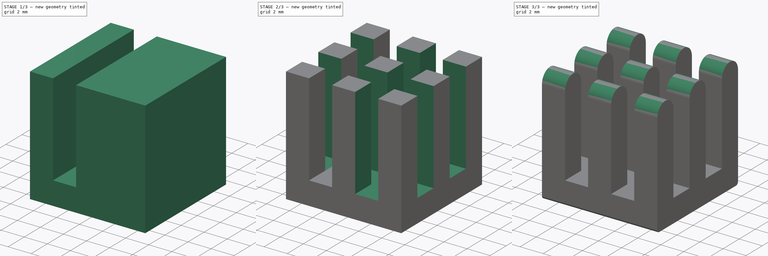
[diagram: build sequence overview — one tinted view per stage of 3, left to right]
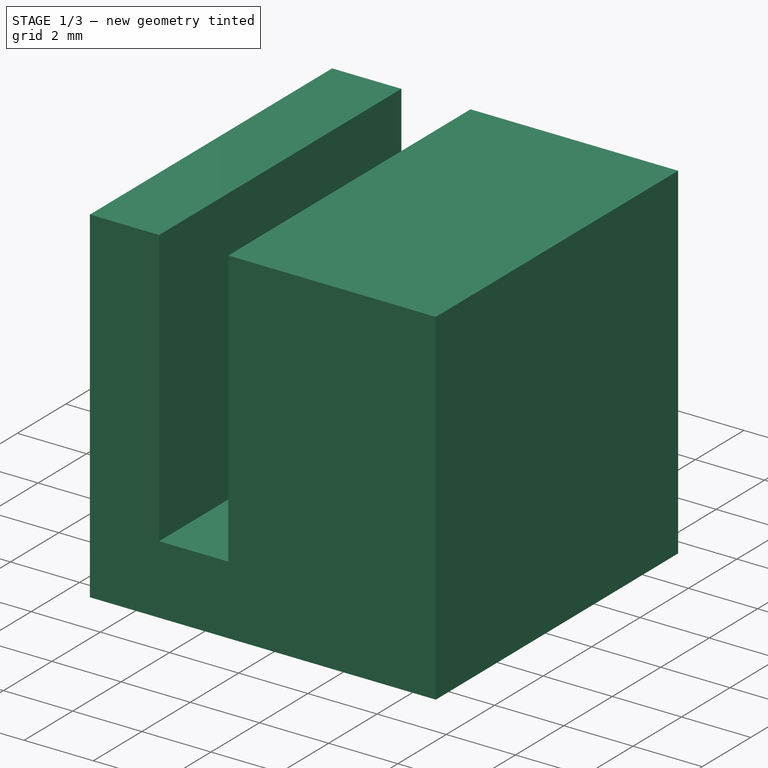
[diagram: stage 1 of 3 — iso view after this stage's code; geometry added in this stage tinted green]
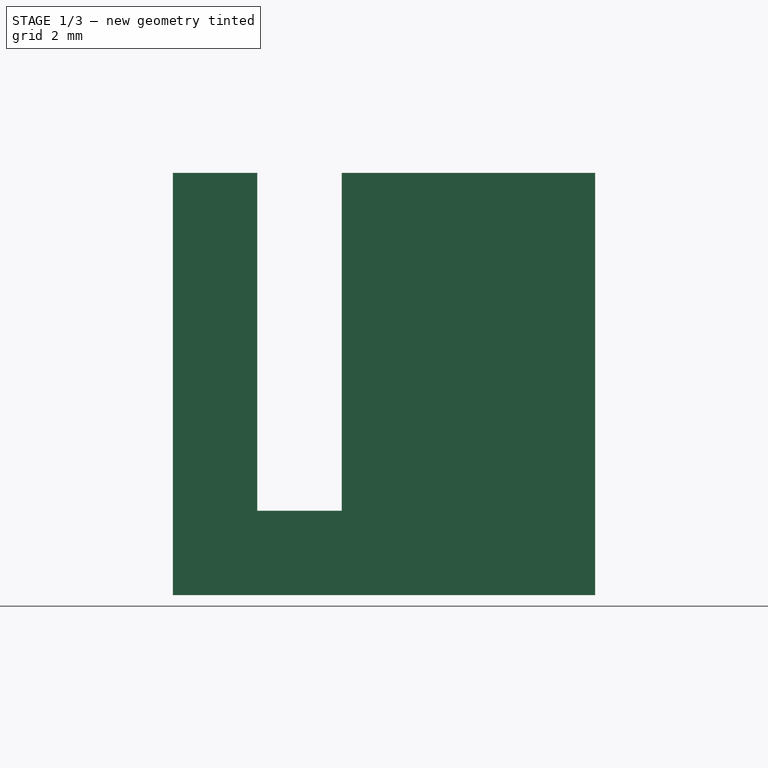
[diagram: stage 1 of 3 — front view after this stage's code; geometry added in this stage tinted green]
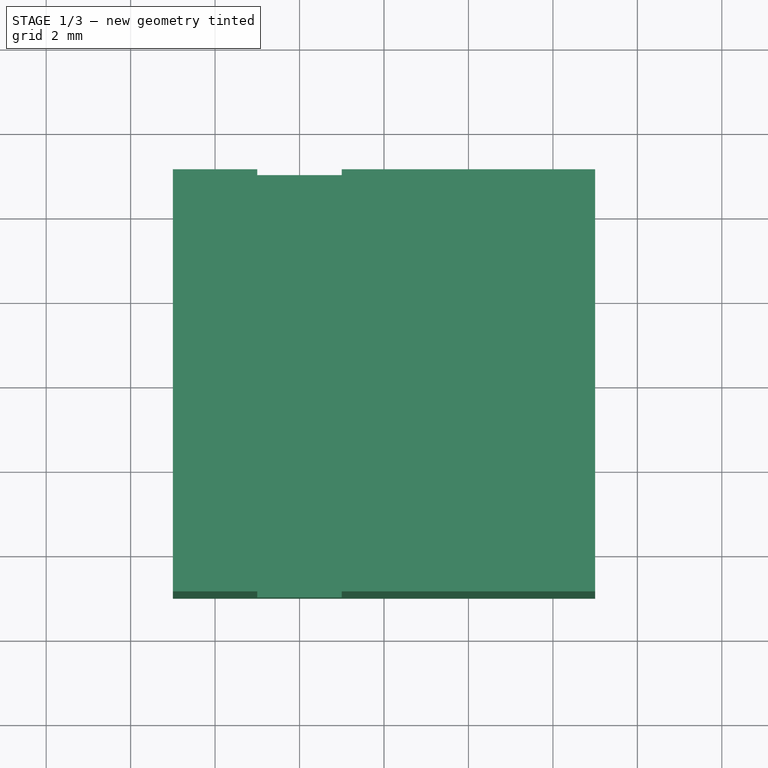
[diagram: stage 1 of 3 — top view after this stage's code; geometry added in this stage tinted green]
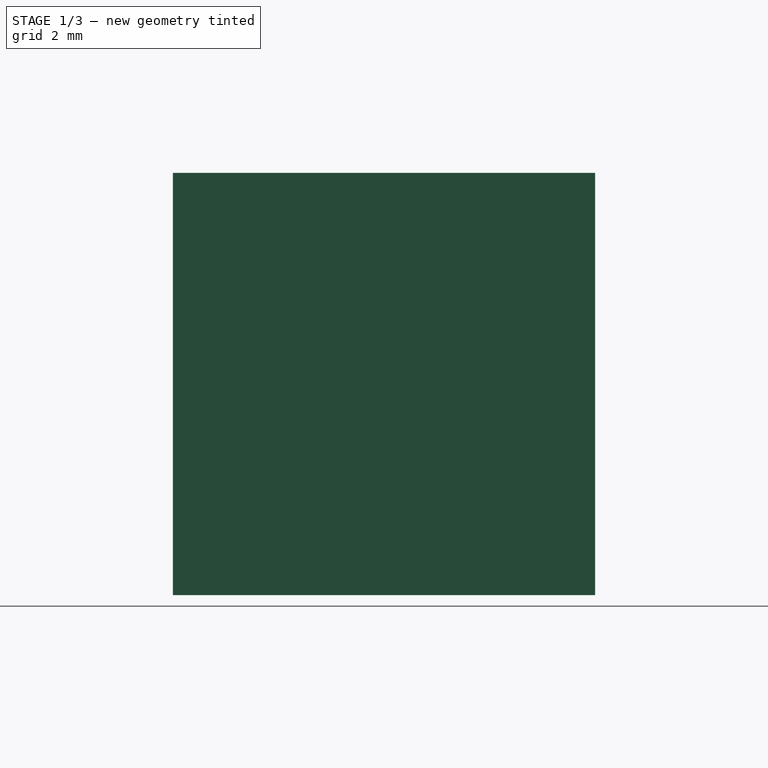
[diagram: stage 1 of 3 — right view after this stage's code; geometry added in this stage tinted green]
FCSTD DOCUMENT  (FreeCAD 0.15R4671 (Git))
Label: Heatsink10x10x10
License: All rights reserved
LicenseURL: http://en.wikipedia.org/wiki/All_rights_reserved
objects: Sketcher::SketchObject×2, PartDesign::Pocket×2, PartDesign::LinearPattern×2, PartDesign::Fillet×2, Part::Box×1
note: 11 computed .brp shape members not serialized (recipe doc carries the construction recipe); baked Part::Feature solids carry a one-line shape summary decoded from their .brp

FEATURE [Part::Box] Box  label="Kocka"
  Height = 10
  Length = 10
  Placement = pos=(-5,-5,0) rot=(0,0,1;0rad)
  Width = 10
FEATURE [Sketcher::SketchObject] Sketch
  Placement = pos=(-5,-5,0) rot=(1,0,0;1.5708rad)
  Support = -> Box [Face3]
  sketch-geometry (4):
    g0: LineSegment StartX=2 StartY=12 StartZ=0 EndX=4 EndY=12 EndZ=0
    g1: LineSegment StartX=4 StartY=12 StartZ=0 EndX=4 EndY=2 EndZ=0
    g2: LineSegment StartX=4 StartY=2 StartZ=0 EndX=2 EndY=2 EndZ=0
    g3: LineSegment StartX=2 StartY=2 StartZ=0 EndX=2 EndY=12 EndZ=0
  constraints (12):
    c: Coincident(g0,g1)
    c: Coincident(g1,g2)
    c: Coincident(g2,g3)
    c: Coincident(g3,g0)
    c: Horizontal(g0)
    c: Horizontal(g2)
    c: Vertical(g1)
    c: Vertical(g3)
    c: DistanceX(g2) = -2
    c: DistanceY(g1) = -10
    c: DistanceY(g-1,g2) = 2
    c: DistanceX(g-1,g2) = 2
FEATURE [PartDesign::Pocket] Pocket
  Length = 5
  Placement = pos=(-5,-5,0) rot=(0,0,1;0rad)
  Sketch = -> Sketch
  Type = 1
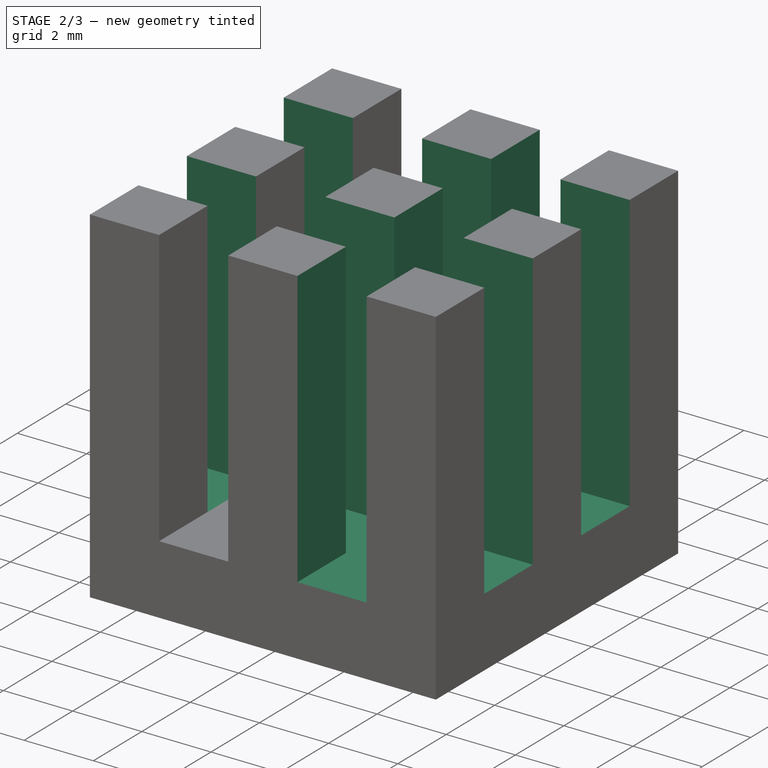
[diagram: stage 2 of 3 — iso view after this stage's code; geometry added in this stage tinted green]
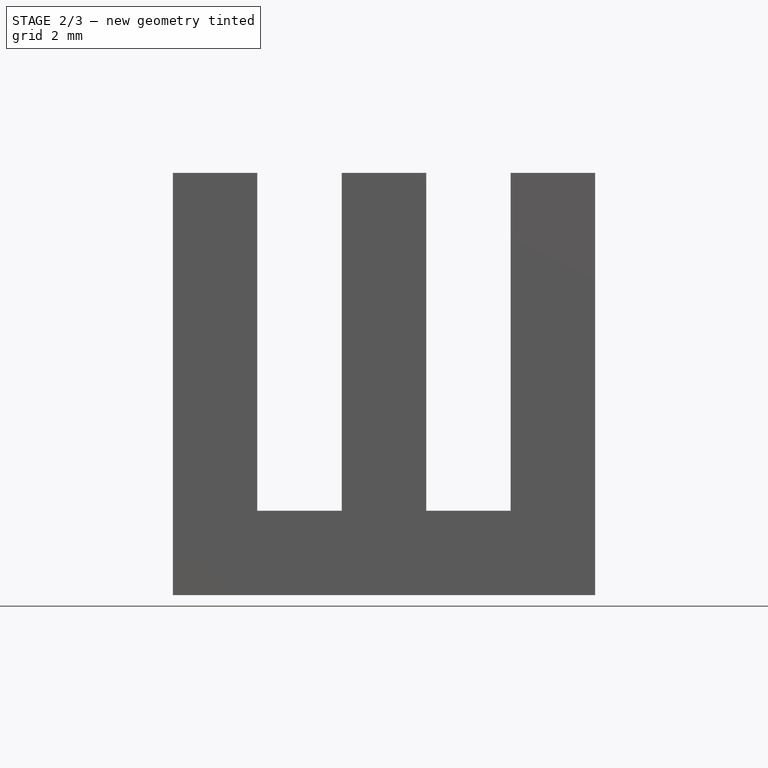
[diagram: stage 2 of 3 — front view after this stage's code; geometry added in this stage tinted green]
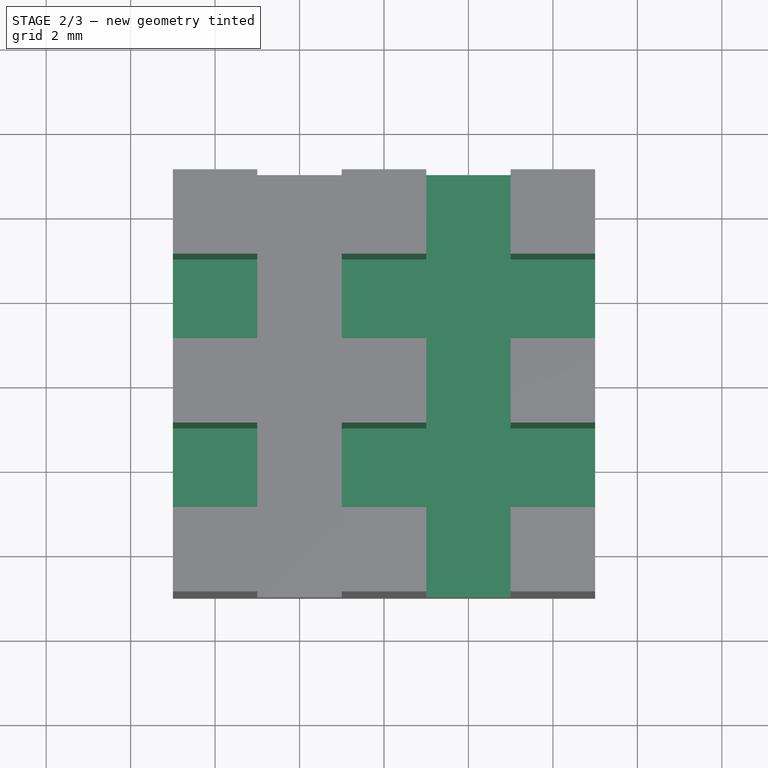
[diagram: stage 2 of 3 — top view after this stage's code; geometry added in this stage tinted green]
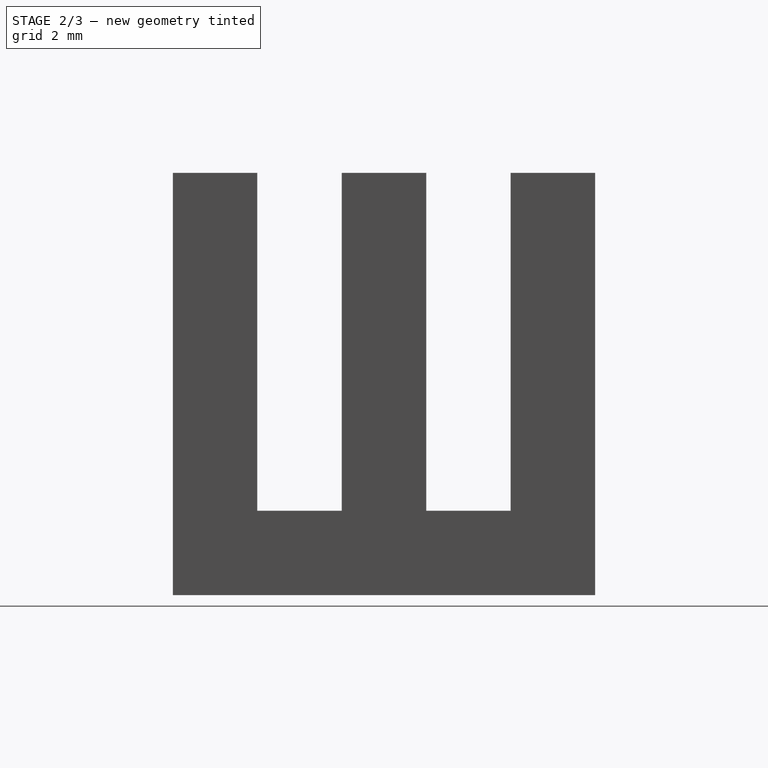
[diagram: stage 2 of 3 — right view after this stage's code; geometry added in this stage tinted green]
FEATURE [PartDesign::LinearPattern] LinearPattern
  Direction = -> Sketch [H_Axis]
  Length = 4
  Occurrences = 2
  Originals = -> [Pocket]
  Placement = pos=(-5,-5,0) rot=(0,0,1;0rad)
FEATURE [Sketcher::SketchObject] Sketch001
  Placement = pos=(5,-5,0) rot=(0.57735,0.57735,0.57735;2.0944rad)
  Support = -> LinearPattern [Face14]
  sketch-geometry (4):
    g0: LineSegment StartX=2 StartY=12 StartZ=0 EndX=4 EndY=12 EndZ=0
    g1: LineSegment StartX=4 StartY=12 StartZ=0 EndX=4 EndY=2 EndZ=0
    g2: LineSegment StartX=4 StartY=2 StartZ=0 EndX=2 EndY=2 EndZ=0
    g3: LineSegment StartX=2 StartY=2 StartZ=0 EndX=2 EndY=12 EndZ=0
  constraints (12):
    c: Coincident(g0,g1)
    c: Coincident(g1,g2)
    c: Coincident(g2,g3)
    c: Coincident(g3,g0)
    c: Horizontal(g0)
    c: Horizontal(g2)
    c: Vertical(g1)
    c: Vertical(g3)
    c: DistanceX(g0) = 2
    c: DistanceY(g1) = -10
    c: DistanceX(g-1,g2) = 2
    c: DistanceY(g-1,g2) = 2
FEATURE [PartDesign::Pocket] Pocket001
  Length = 5
  Placement = pos=(-5,-5,0) rot=(0,0,1;0rad)
  Sketch = -> Sketch001
  Type = 1
FEATURE [PartDesign::LinearPattern] LinearPattern001
  Direction = -> Sketch001 [H_Axis]
  Length = 4
  Occurrences = 2
  Originals = -> [Pocket001]
  Placement = pos=(-5,-5,0) rot=(0,0,1;0rad)
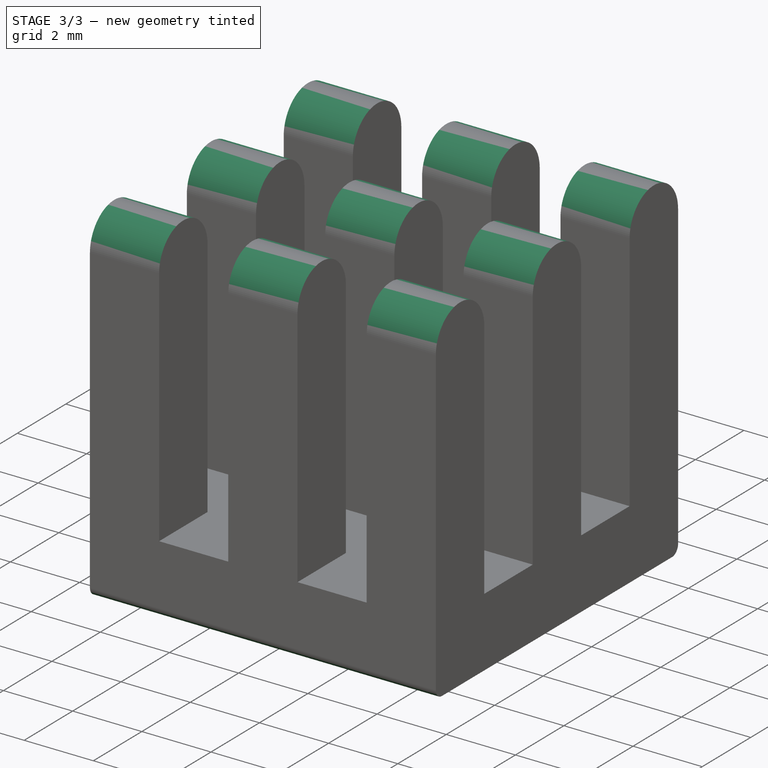
[diagram: stage 3 of 3 — iso view after this stage's code; geometry added in this stage tinted green]
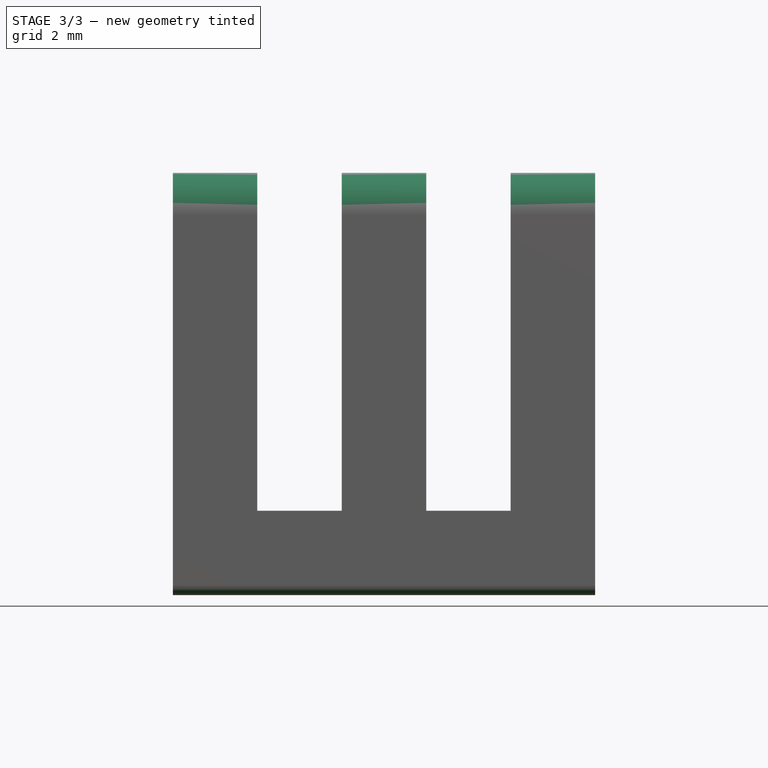
[diagram: stage 3 of 3 — front view after this stage's code; geometry added in this stage tinted green]
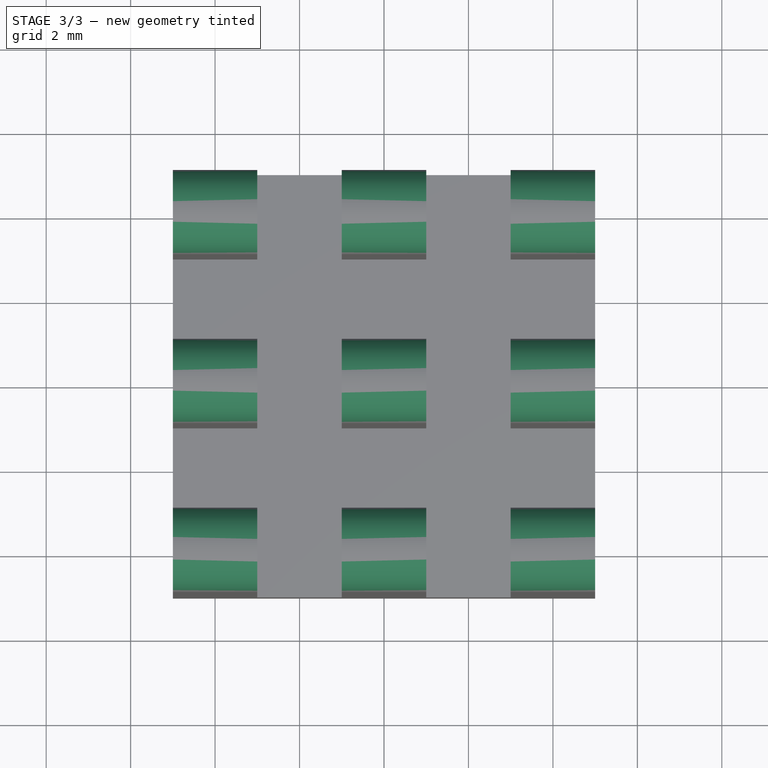
[diagram: stage 3 of 3 — top view after this stage's code; geometry added in this stage tinted green]
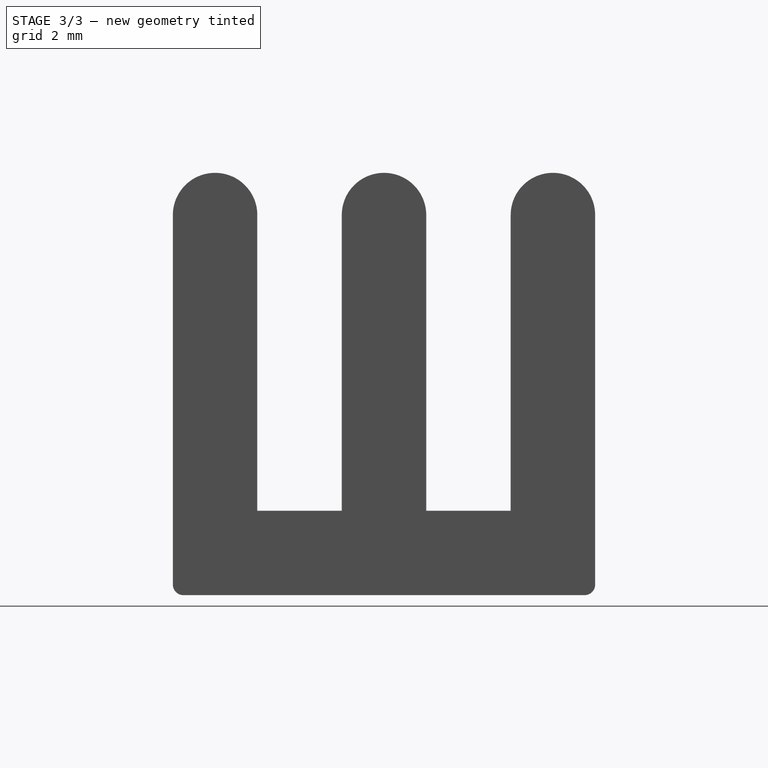
[diagram: stage 3 of 3 — right view after this stage's code; geometry added in this stage tinted green]
FEATURE [PartDesign::Fillet] Fillet
  Base = -> LinearPattern001 [Edge33,Edge31,Edge62,Edge76,Edge58,Edge68,Edge7,Edge93,Edge108,Edge104,Edge36,Edge39,Edge43,Edge46,Edge52,Edge89,Edge48,Edge82]
  Placement = pos=(-5,-5,0) rot=(0,0,1;0rad)
  Radius = 0.999
FEATURE [PartDesign::Fillet] Fillet001
  Base = -> Fillet [Edge68,Edge95]
  Placement = pos=(-5,-5,0) rot=(0,0,1;0rad)
  Radius = 0.25
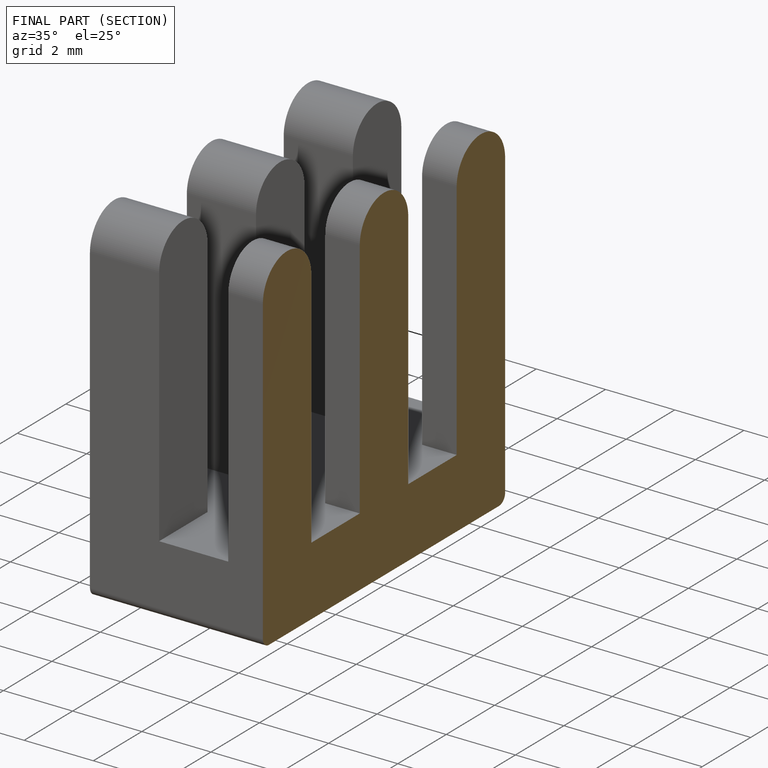
[diagram: finished part — half-section view (interior)]
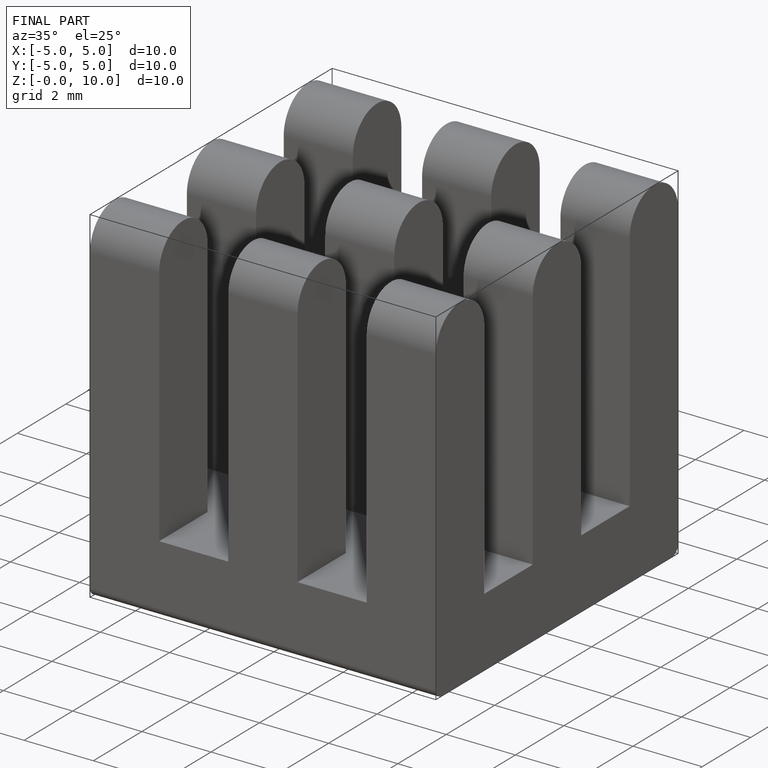
[diagram: finished part — iso view with bounding-box wireframe]
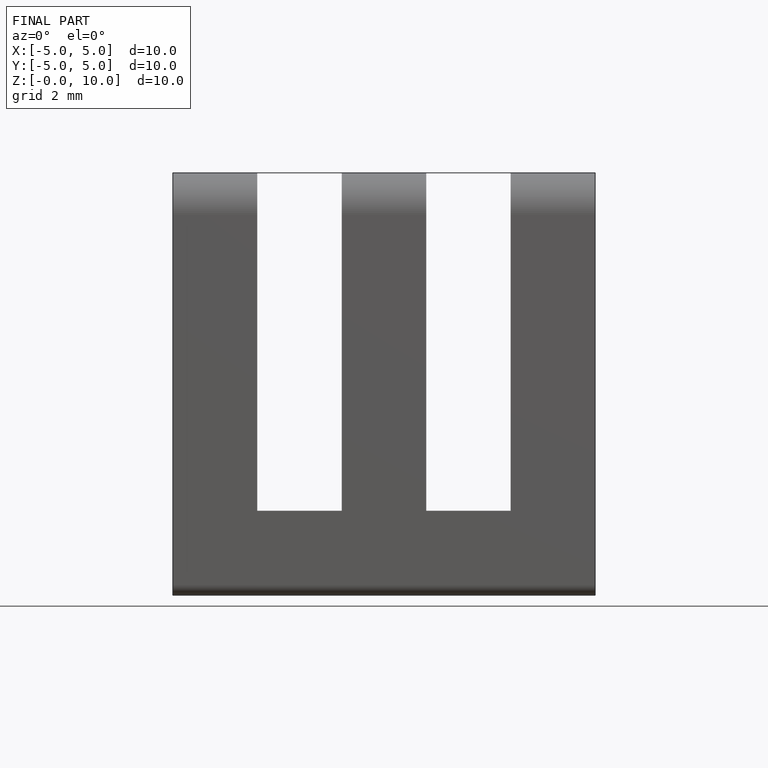
[diagram: finished part — front view with bounding-box wireframe]
